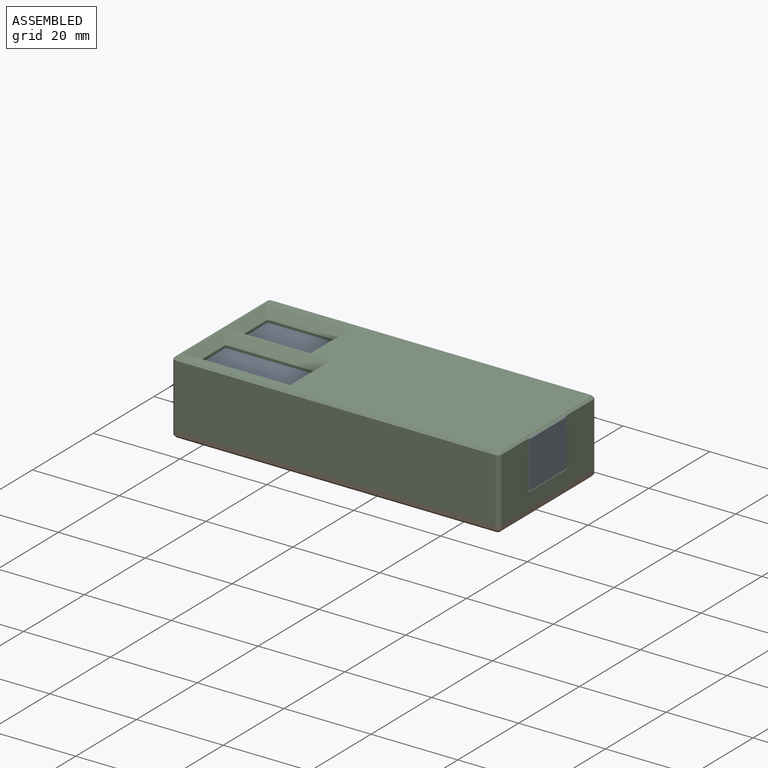
[diagram: assembled view]
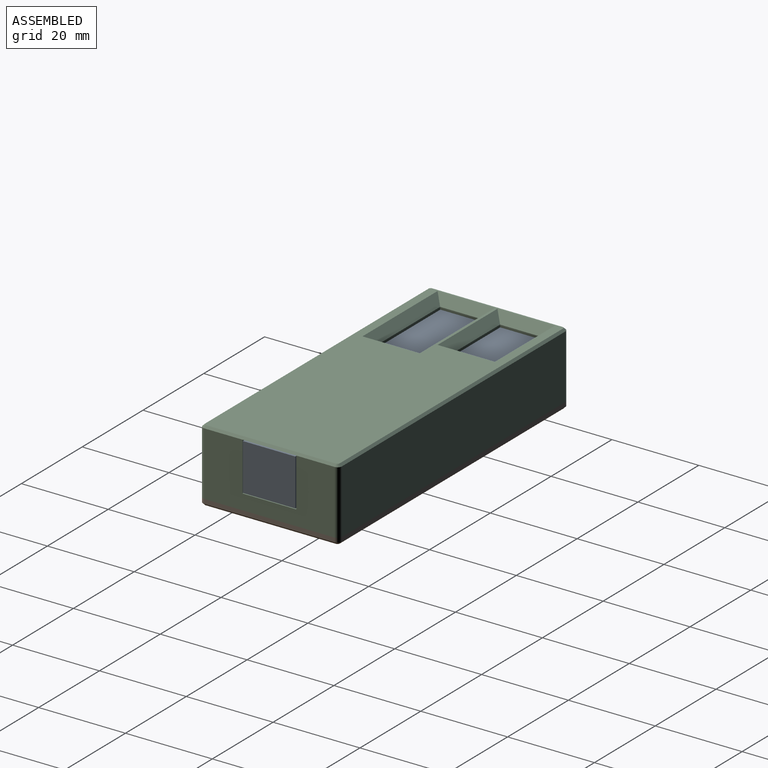
[diagram: assembled view, second angle]
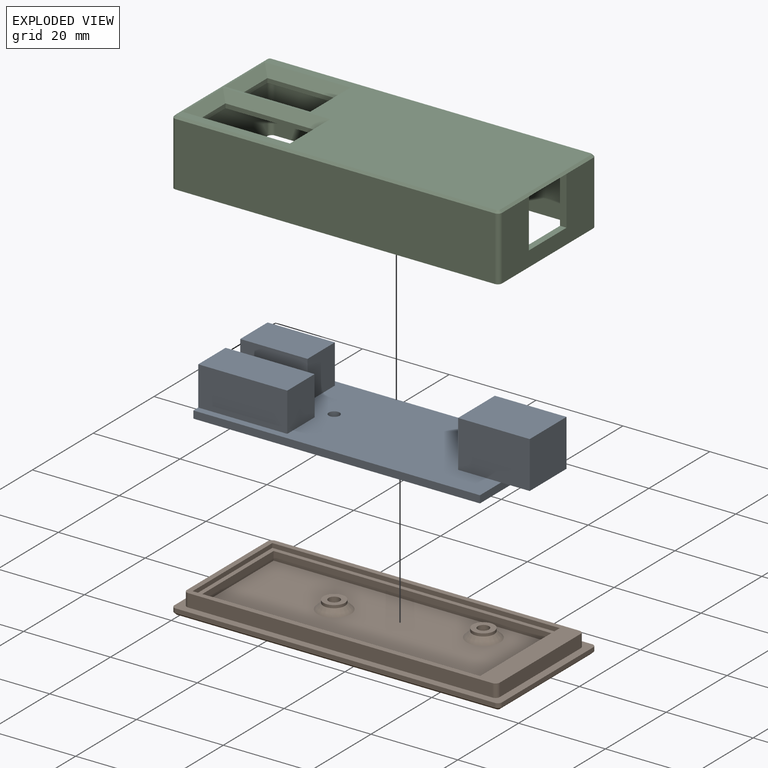
[diagram: exploded view]
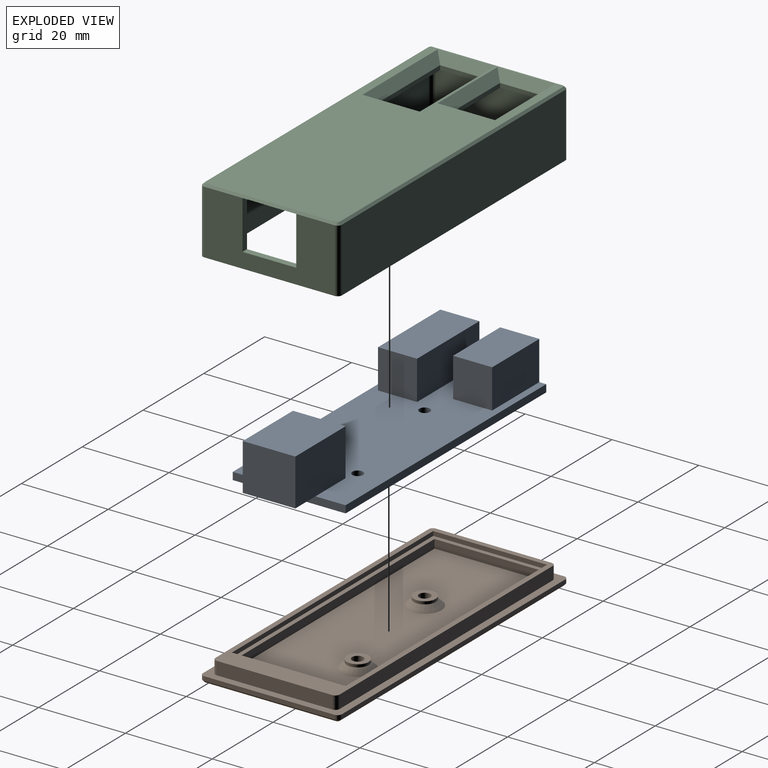
[diagram: exploded view, second angle]
ASSEMBLY  parts=3 mates=2
PART A: 22 faces, bbox 72.6x26x12.5 mm
  f0: plane 66x26mm, normal (0,0,1), area 1262.4mm2, adj f1,f2,f3,f4,f5,f6,f8,f9
  f1: plane 26x1.7mm, normal (1,0,0), area 44.2mm2, adj f0,f2,f5,f7,f21
  f2: plane 66x1.7mm, normal (0,1,0), area 112.2mm2, adj f0,f1,f3,f7
  f3: plane 26x10.7mm, normal (-1,0,0), area 206.2mm2, adj f0,f2,f5,f7,f8,f9,f11,f12
  f4: cylinder r=1.25mm len=2.5mm, axis (0,0,1), area 13.4mm2, adj f0,f7
  f5: plane 66x1.7mm, normal (0,-1,0), area 112.2mm2, adj f0,f1,f3,f7
  f6: cylinder r=1.25mm len=2.5mm, axis (0,0,1), area 13.4mm2, adj f0,f7
  f7: plane 66x26mm, normal (0,0,-1), area 1706.2mm2, adj f1,f2,f3,f4,f5,f6
  f8: plane 20.5x9mm, normal (0,1,0), area 184.5mm2, adj f0,f3,f10,f11
  f9: plane 20.5x9mm, normal (0,-1,0), area 184.5mm2, adj f0,f3,f10,f11
  f10: plane 9x9mm, normal (1,0,0), area 81mm2, adj f0,f8,f9,f11
  f11: plane 20.5x9mm, normal (0,0,1), area 184.5mm2, adj f3,f8,f9,f10
  f12: plane 15.5x9mm, normal (0,1,0), area 139.5mm2, adj f0,f3,f14,f15
  f13: plane 15.5x9mm, normal (0,-1,0), area 139.5mm2, adj f0,f3,f14,f15
  f14: plane 9x9mm, normal (1,0,0), area 81mm2, adj f0,f12,f13,f15
  f15: plane 15.5x9mm, normal (0,0,1), area 139.5mm2, adj f3,f12,f13,f14
  f16: plane 16.5x10.8mm, normal (0,1,0), area 178.2mm2, adj f0,f17,f19,f20,f21
  f17: plane 12.1x10.8mm, normal (-1,0,0), area 130.7mm2, adj f0,f16,f18,f20
  f18: plane 16.5x10.8mm, normal (0,-1,0), area 178.2mm2, adj f0,f17,f19,f20,f21
  f19: plane 12.1x10.8mm, normal (1,0,0), area 130.7mm2, adj f16,f18,f20,f21
  f20: plane 16.5x12.1mm, normal (0,0,1), area 199.7mm2, adj f16,f17,f18,f19
  f21: plane 12.1x6.6mm, normal (0,0,-1), area 79.9mm2, adj f1,f16,f18,f19
PART B: 47 faces, bbox 75.5x32x4.5 mm
  f0: plane 64.2x24.2mm, normal (0,0,1), area 1460.5mm2, adj f18,f19,f20,f21,f27,f28
  f1: plane 30x1mm, normal (-1,0,0), area 30mm2, adj f7,f35,f38,f42
  f2: plane 73.5x1mm, normal (0,-1,0), area 73.5mm2, adj f7,f35,f36,f39
  f3: plane 30x1mm, normal (1,0,0), area 30mm2, adj f7,f36,f37,f43
  f4: cylinder r=1.3mm len=2.6mm, axis (0,0,-1), area 17.6mm2, adj f26,f29
  f5: plane 73.5x1mm, normal (0,1,0), area 73.5mm2, adj f7,f37,f38,f46
  f6: cylinder r=1.3mm len=2.6mm, axis (0,0,-1), area 17.6mm2, adj f24,f30
  f7: plane 75.5x32mm, normal (0,0,1), area 353.9mm2, adj f1,f2,f3,f5,f9,f10,f11,f16
  f8: plane 74.5x31mm, normal (0,0,-1), area 2265.2mm2, adj f29,f30,f39,f40,f41,f42,f43,f44
  f9: plane 70.1x3mm, normal (0,1,0), area 210.3mm2, adj f7,f17,f31,f34
  f10: plane 26.6x3mm, normal (-1,0,0), area 79.8mm2, adj f7,f17,f31,f32
  f11: plane 70.1x3mm, normal (0,-1,0), area 210.3mm2, adj f7,f17,f32,f33
  f12: plane 26.2x1mm, normal (1,0,0), area 26.2mm2, adj f13,f15,f17,f22
  f13: plane 66.2x1mm, normal (0,-1,0), area 66.2mm2, adj f12,f14,f17,f22
  f14: plane 26.2x1mm, normal (-1,0,0), area 26.2mm2, adj f13,f15,f17,f22
  f15: plane 66.2x1mm, normal (0,1,0), area 66.2mm2, adj f12,f14,f17,f22
  f16: plane 26.6x3mm, normal (1,0,0), area 79.8mm2, adj f7,f17,f33,f34
  f17: plane 72.1x28.6mm, normal (0,0,1), area 326.8mm2, adj f9,f10,f11,f12,f13,f14,f15,f16
  f18: plane 24.2x2mm, normal (1,0,0), area 48.4mm2, adj f0,f19,f21,f22
  f19: plane 64.2x2mm, normal (0,-1,0), area 128.4mm2, adj f0,f18,f20,f22
  f20: plane 24.2x2mm, normal (-1,0,0), area 48.4mm2, adj f0,f19,f21,f22
  f21: plane 64.2x2mm, normal (0,1,0), area 128.4mm2, adj f0,f18,f20,f22
  f22: plane 66.2x26.2mm, normal (0,0,1), area 180.8mm2, adj f12,f13,f14,f15,f18,f19,f20,f21
  f23: cylinder r=2.5mm len=5mm, axis (0,0,-1), area 10.2mm2, adj f24,f28
  f24: plane 5x5mm, normal (0,0,1), area 14.3mm2, adj f6,f23
  f25: cylinder r=2.5mm len=5mm, axis (0,0,-1), area 10.2mm2, adj f26,f27
  f26: plane 5x5mm, normal (0,0,1), area 14.3mm2, adj f4,f25
  f27: cone r=3.85mm half-angle=45deg, axis (0,0,-1), area 38.1mm2, adj f0,f25
  f28: cone r=3.85mm half-angle=45deg, axis (0,0,-1), area 38.1mm2, adj f0,f23
  f29: cone r=2.65mm half-angle=45deg, axis (0,0,-1), area 23.7mm2, adj f4,f8
  f30: cone r=2.65mm half-angle=45deg, axis (0,0,-1), area 23.7mm2, adj f6,f8
  f31: cylinder r=1mm len=3mm, axis (0,0,-1), area 4.7mm2, adj f7,f9,f10,f17
  f32: cylinder r=1mm len=3mm, axis (0,0,1), area 4.7mm2, adj f7,f10,f11,f17
  f33: cylinder r=1mm len=3mm, axis (0,0,-1), area 4.7mm2, adj f7,f11,f16,f17
  f34: cylinder r=1mm len=3mm, axis (0,0,1), area 4.7mm2, adj f7,f9,f16,f17
  f35: cylinder r=1mm len=1mm, axis (0,0,1), area 1.6mm2, adj f1,f2,f7,f40
  f36: cylinder r=1mm len=1mm, axis (0,0,-1), area 1.6mm2, adj f2,f3,f7,f41
  f37: cylinder r=1mm len=1mm, axis (0,0,1), area 1.6mm2, adj f3,f5,f7,f45
  f38: cylinder r=1mm len=1mm, axis (0,0,-1), area 1.6mm2, adj f1,f5,f7,f44
  f39: plane 73.5x0.5mm, normal (0,-0.71,-0.71), area 52mm2, adj f2,f8,f40,f41
  f40: cone r=0.5mm half-angle=45deg, axis (0,0,1), area 0.8mm2, adj f8,f35,f39,f42
  f41: cone r=0.5mm half-angle=45deg, axis (0,0,1), area 0.8mm2, adj f8,f36,f39,f43
  f42: plane 30x0.5mm, normal (-0.71,0,-0.71), area 21.2mm2, adj f1,f8,f40,f44
  f43: plane 30x0.5mm, normal (0.71,0,-0.71), area 21.2mm2, adj f3,f8,f41,f45
  f44: cone r=0.5mm half-angle=45deg, axis (0,0,1), area 0.8mm2, adj f8,f38,f42,f46
  f45: cone r=0.5mm half-angle=45deg, axis (0,0,1), area 0.8mm2, adj f8,f37,f43,f46
  f46: plane 73.5x0.5mm, normal (0,0.71,-0.71), area 52mm2, adj f5,f8,f44,f45
PART C: 61 faces, bbox 75.9x32.4x15.6 mm
  f0: plane 30x14.7mm, normal (1,0,0), area 302.1mm2, adj f18,f29,f30,f31,f38,f39,f45
  f1: plane 48.3x29mm, normal (0,0,-1), area 1116.9mm2, adj f14,f15,f16,f28,f29,f31,f33,f34
  f2: plane 9.2x1mm, normal (1,0,0), area 9.2mm2, adj f3,f12,f27,f50
  f3: plane 20.7x1mm, normal (0,-1,0), area 20.7mm2, adj f2,f4,f27,f49
  f4: plane 9.2x1mm, normal (-1,0,0), area 9.2mm2, adj f3,f12,f27,f51
  f5: plane 9.2x1mm, normal (1,0,0), area 9.2mm2, adj f6,f10,f27,f54
  f6: plane 15.7x1mm, normal (0,-1,0), area 15.7mm2, adj f5,f7,f27,f53
  f7: plane 9.2x1mm, normal (-1,0,0), area 9.2mm2, adj f6,f10,f27,f55
  f8: plane 30x14.7mm, normal (-1,0,0), area 441mm2, adj f18,f37,f40,f44
  f9: plane 73.5x14.7mm, normal (0,-1,0), area 1080.5mm2, adj f18,f37,f38,f41
  f10: plane 15.7x1mm, normal (0,1,0), area 15.7mm2, adj f5,f7,f27,f56
  f11: plane 73.5x14.7mm, normal (0,1,0), area 1080.4mm2, adj f18,f39,f40,f48
  f12: plane 20.7x1mm, normal (0,1,0), area 20.7mm2, adj f2,f4,f27,f52
  f13: plane 74.5x31mm, normal (0,0,1), area 1723.2mm2, adj f41,f42,f43,f44,f45,f46,f47,f48
  f14: plane 70.5x13.7mm, normal (0,-1,0), area 932.2mm2, adj f1,f18,f27,f33,f36,f59
  f15: plane 27x13.7mm, normal (-1,0,0), area 243.4mm2, adj f1,f18,f29,f30,f31,f33,f34
  f16: plane 70.5x13.7mm, normal (0,1,0), area 932.2mm2, adj f1,f18,f27,f34,f35,f60
  f17: plane 27x12.2mm, normal (1,0,0), area 329.4mm2, adj f18,f27,f35,f36
  f18: plane 75.5x32mm, normal (0,0,-1), area 313.5mm2, adj f0,f8,f9,f11,f14,f15,f16,f17
  f19: cylinder r=1.1mm len=10mm, axis (0,0,1), area 69.1mm2, adj f21,f22
  f20: cylinder r=2.5mm len=8mm, axis (0,0,1), area 125.7mm2, adj f21,f58
  f21: plane 5x5mm, normal (0,0,-1), area 15.8mm2, adj f19,f20
  f22: plane 2.2x2.2mm, normal (0,0,-1), area 3.8mm2, adj f19
  f23: cylinder r=1.1mm len=8.5mm, axis (0,0,1), area 58.7mm2, adj f25,f26
  f24: cylinder r=2.5mm len=6.5mm, axis (0,0,1), area 102.1mm2, adj f25,f57
  f25: plane 5x5mm, normal (0,0,-1), area 15.8mm2, adj f23,f24
  f26: plane 2.2x2.2mm, normal (0,0,-1), area 3.8mm2, adj f23
  f27: plane 29x22.7mm, normal (0,0,-1), area 317.5mm2, adj f2,f3,f4,f5,f6,f7,f10,f12
  f28: plane 12.4x2.95mm, normal (1,0,0), area 16.1mm2, adj f1,f29,f31,f32,f57
  f29: plane 17x11.2mm, normal (0,1,0), area 32.3mm2, adj f0,f1,f15,f28,f30,f32
  f30: plane 12.4x1.5mm, normal (0,0,1), area 18.6mm2, adj f0,f15,f29,f31
  f31: plane 17.08x11.28mm, normal (0,-1,0), area 34.2mm2, adj f0,f1,f15,f28,f30,f32,f57
  f32: plane 17x12.4mm, normal (0,0,-1), area 210.8mm2, adj f28,f29,f31,f45
  f33: cylinder r=1mm len=13.7mm, axis (0,0,1), area 21.5mm2, adj f1,f14,f15,f18
  f34: cylinder r=1mm len=13.7mm, axis (0,0,-1), area 21.5mm2, adj f1,f15,f16,f18
  f35: cylinder r=1mm len=12.2mm, axis (0,0,1), area 19.2mm2, adj f16,f17,f18,f27
  f36: cylinder r=1mm len=12.2mm, axis (0,0,-1), area 19.2mm2, adj f14,f17,f18,f27
  f37: cylinder r=1mm len=14.7mm, axis (0,0,-1), area 23.1mm2, adj f8,f9,f18,f42
  f38: cylinder r=1mm len=14.7mm, axis (0,0,1), area 23.1mm2, adj f0,f9,f18,f43
  f39: cylinder r=1mm len=14.7mm, axis (0,0,-1), area 23.1mm2, adj f0,f11,f18,f47
  f40: cylinder r=1mm len=14.7mm, axis (0,0,1), area 23.1mm2, adj f8,f11,f18,f46
  f41: plane 73.5x0.5mm, normal (0,-0.71,0.71), area 52mm2, adj f9,f13,f42,f43
  f42: cone r=0.5mm half-angle=45deg, axis (0,0,-1), area 0.8mm2, adj f13,f37,f41,f44
  f43: cone r=0.5mm half-angle=45deg, axis (0,0,-1), area 0.8mm2, adj f13,f38,f41,f45
  f44: plane 30x0.5mm, normal (-0.71,0,0.71), area 21.2mm2, adj f8,f13,f42,f46
  f45: plane 30x0.5mm, normal (0.71,0,0.71), area 21.2mm2, adj f0,f13,f32,f43,f47
  f46: cone r=0.5mm half-angle=45deg, axis (0,0,-1), area 0.8mm2, adj f13,f40,f44,f48
  f47: cone r=0.5mm half-angle=45deg, axis (0,0,-1), area 0.8mm2, adj f13,f39,f45,f48
  f48: plane 73.5x0.5mm, normal (0,0.71,0.71), area 52mm2, adj f11,f13,f46,f47
  f49: plane 24.7x2mm, normal (0,-0.71,0.71), area 64.2mm2, adj f3,f13,f50,f51
  f50: plane 13.2x2mm, normal (0.71,0,0.71), area 31.7mm2, adj f2,f13,f49,f52
  f51: plane 13.2x2mm, normal (-0.71,0,0.71), area 31.7mm2, adj f4,f13,f49,f52
  f52: plane 24.7x2mm, normal (0,0.71,0.71), area 64.2mm2, adj f12,f13,f50,f51
  f53: plane 19.7x2mm, normal (0,-0.71,0.71), area 50.1mm2, adj f6,f13,f54,f55
  f54: plane 13.2x2mm, normal (0.71,0,0.71), area 31.7mm2, adj f5,f13,f53,f56
  f55: plane 13.2x2mm, normal (-0.71,0,0.71), area 31.7mm2, adj f7,f13,f53,f56
  f56: plane 19.7x2mm, normal (0,0.71,0.71), area 50.1mm2, adj f10,f13,f54,f55
  f57: cone r=4.5mm half-angle=45deg, axis (0,0,1), area 56.2mm2, adj f1,f24,f28,f31
  f58: cone r=4.5mm half-angle=45deg, axis (0,0,1), area 41.1mm2, adj f1,f20,f27,f59,f60
  f59: plane 11.37x1.86mm, normal (0.71,0,-0.71), area 21.1mm2, adj f1,f14,f27,f58
  f60: plane 13.17x1.86mm, normal (0.71,0,-0.71), area 25mm2, adj f1,f16,f27,f58
PLACE A t=(36,16,5.2)mm
PLACE B at identity fixed
PLACE C t=(0,0,16.7)mm
MATE fastened B.f6 <-> A.f4  axis (0,0,-1) through (25.7,16.9,3.5)mm
MATE fastened C.f19 <-> A.f4  axis (0,0,-1) through (25.7,16.9,5.2)mm
